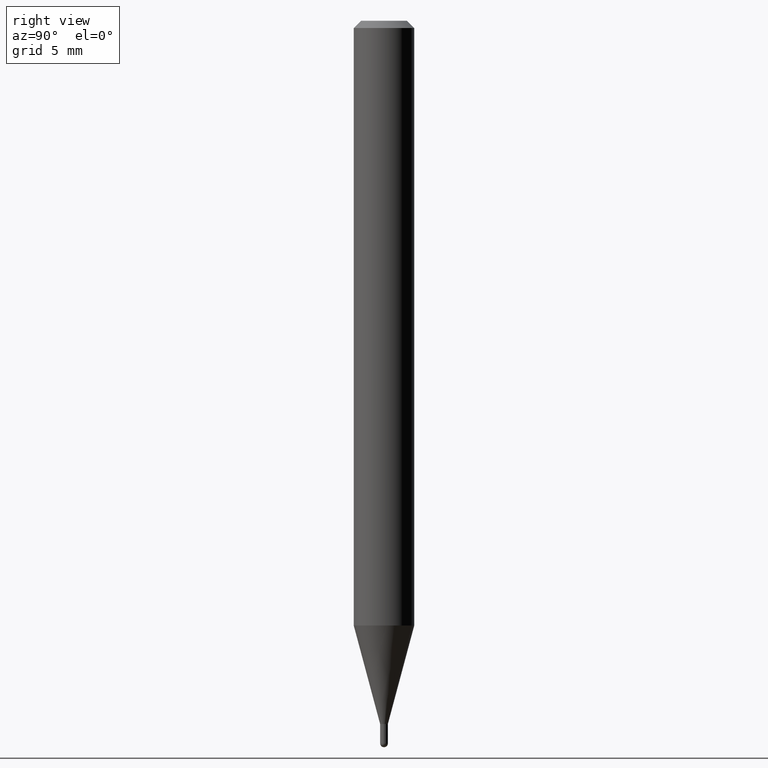
[diagram: clean part render]
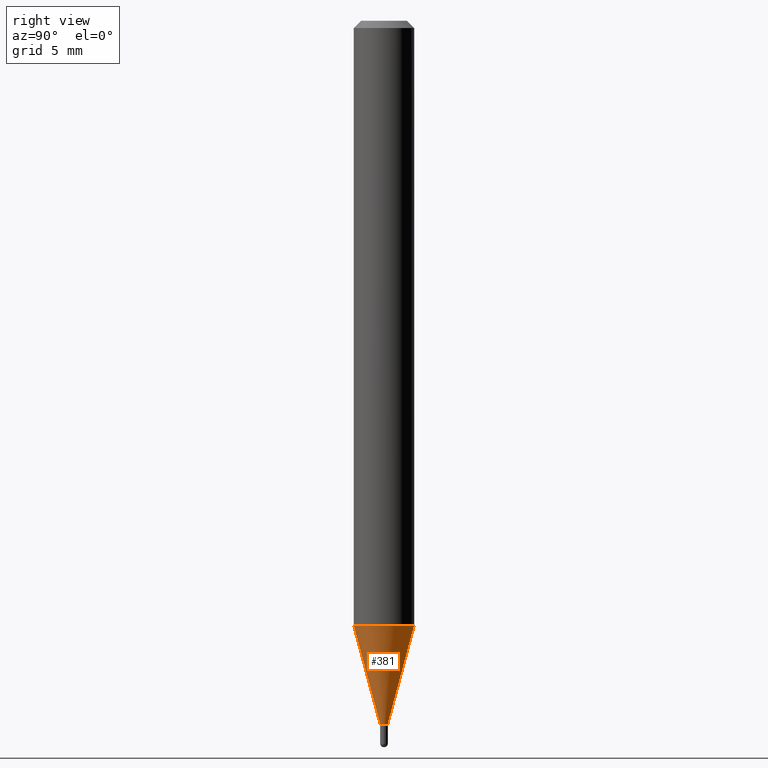
[diagram: same view with one face highlighted and labeled with its STEP entity id]
A machine part, right view. The second image highlights one B-rep face of the part: STEP entity #381.
In plain terms, the highlighted conical surface has half-angle 15 deg.
Its self-contained STEP definition (entity closure, byte-faithful):
#14 = CARTESIAN_POINT ( 'NONE',  ( 3.053405774632062689E-29, -4.359495614003555810E-15, -1.248603230987503920 ) ) ;
#29 = VERTEX_POINT ( 'NONE', #47 ) ;
#36 = VERTEX_POINT ( 'NONE', #321 ) ;
#47 = CARTESIAN_POINT ( 'NONE',  ( -4.364351673553612983E-16, -0.06250000000000438538, -1.248603230987503698 ) ) ;
#77 = DIRECTION ( 'NONE',  ( -6.982962677686266711E-15, -1.000000000000000000, 0.000000000000000000 ) ) ;
#79 = LINE ( 'NONE', #143, #105 ) ;
#88 = VECTOR ( 'NONE', #302, 39.37007874015748854 ) ;
#105 = VECTOR ( 'NONE', #118, 39.37007874015747433 ) ;
#115 = AXIS2_PLACEMENT_3D ( 'NONE', #265, #508, #77 ) ;
#118 = DIRECTION ( 'NONE',  ( 1.839019923739651986E-15, 0.2588190451025322303, 0.9659258262890653146 ) ) ;
#143 = CARTESIAN_POINT ( 'NONE',  ( 5.684341886084491995E-17, 0.007999999999995127328, -1.452000000000000179 ) ) ;
#173 = DIRECTION ( 'NONE',  ( -2.445457210788381726E-29, 3.491497944111267737E-15, 1.000000000000000000 ) ) ;
#192 = CARTESIAN_POINT ( 'NONE',  ( 2.504663143554691632E-16, 0.007999999999995127328, -1.452000000000000179 ) ) ;
#202 = DIRECTION ( 'NONE',  ( -2.445457210788381726E-29, 3.491497944111267737E-15, 1.000000000000000000 ) ) ;
#232 = CARTESIAN_POINT ( 'NONE',  ( 4.440892098500930859E-16, 0.06249999999999564237, -1.248603230987504142 ) ) ;
#247 = EDGE_CURVE ( 'NONE', #36, #357, #301, .T. ) ;
#248 = EDGE_LOOP ( 'NONE', ( #507, #452, #467, #260 ) ) ;
#252 = DIRECTION ( 'NONE',  ( -6.982962677686266711E-15, -1.000000000000000000, 0.000000000000000000 ) ) ;
#256 = CIRCLE ( 'NONE', #449, 0.06250000000000000000 ) ;
#259 = LINE ( 'NONE', #379, #88 ) ;
#260 = ORIENTED_EDGE ( 'NONE', *, *, #363, .F. ) ;
#265 = CARTESIAN_POINT ( 'NONE',  ( 3.550803870064730798E-29, -5.069655014849561599E-15, -1.452000000000000179 ) ) ;
#301 = CIRCLE ( 'NONE', #487, 0.008000000000000197925 ) ;
#302 = DIRECTION ( 'NONE',  ( -1.807323732225380626E-15, -0.2588190451025254024, 0.9659258262890669799 ) ) ;
#321 = CARTESIAN_POINT ( 'NONE',  ( -5.586370142145600510E-17, -0.008000000000005268522, -1.452000000000000179 ) ) ;
#323 = EDGE_CURVE ( 'NONE', #357, #394, #79, .T. ) ;
#357 = VERTEX_POINT ( 'NONE', #192 ) ;
#363 = EDGE_CURVE ( 'NONE', #36, #29, #259, .T. ) ;
#379 = CARTESIAN_POINT ( 'NONE',  ( -5.586370142145600510E-17, -0.008000000000005268522, -1.452000000000000179 ) ) ;
#381 = ADVANCED_FACE ( 'NONE', ( #506 ), #437, .T. ) ;
#394 = VERTEX_POINT ( 'NONE', #232 ) ;
#437 = CONICAL_SURFACE ( 'NONE', #115, 0.008000000000000197925, 0.2617993877991577345 ) ;
#445 = DIRECTION ( 'NONE',  ( -6.982962677686265922E-15, -1.000000000000000000, 4.370956789862821150E-15 ) ) ;
#449 = AXIS2_PLACEMENT_3D ( 'NONE', #14, #202, #445 ) ;
#452 = ORIENTED_EDGE ( 'NONE', *, *, #323, .T. ) ;
#467 = ORIENTED_EDGE ( 'NONE', *, *, #509, .F. ) ;
#487 = AXIS2_PLACEMENT_3D ( 'NONE', #497, #173, #252 ) ;
#497 = CARTESIAN_POINT ( 'NONE',  ( 3.550803870064730798E-29, -5.069655014849561599E-15, -1.452000000000000179 ) ) ;
#506 = FACE_OUTER_BOUND ( 'NONE', #248, .T. ) ;
#507 = ORIENTED_EDGE ( 'NONE', *, *, #247, .T. ) ;
#508 = DIRECTION ( 'NONE',  ( -2.445457210788381726E-29, 3.491497944111267737E-15, 1.000000000000000000 ) ) ;
#509 = EDGE_CURVE ( 'NONE', #29, #394, #256, .T. ) ;